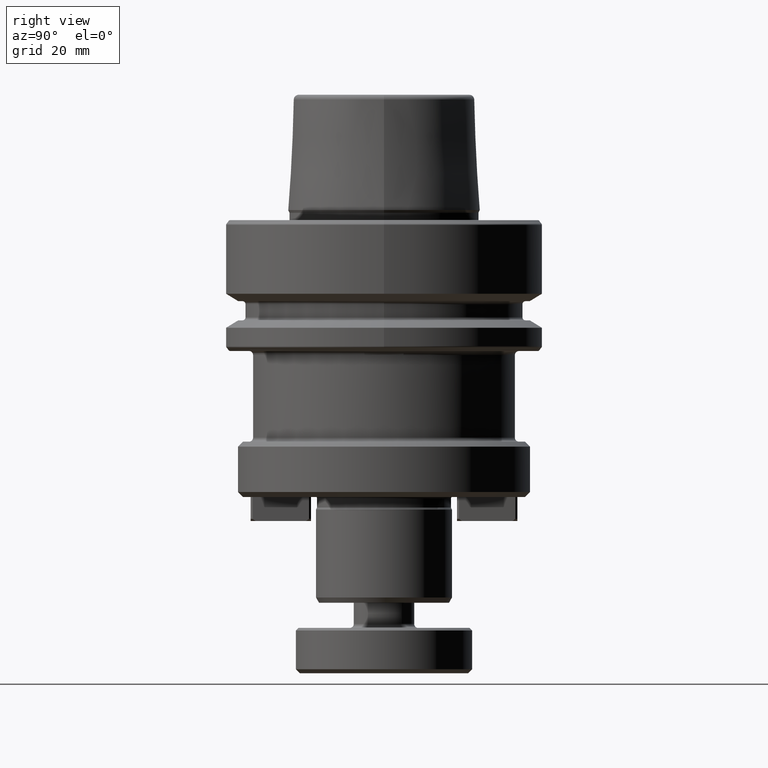
[diagram: clean part render]
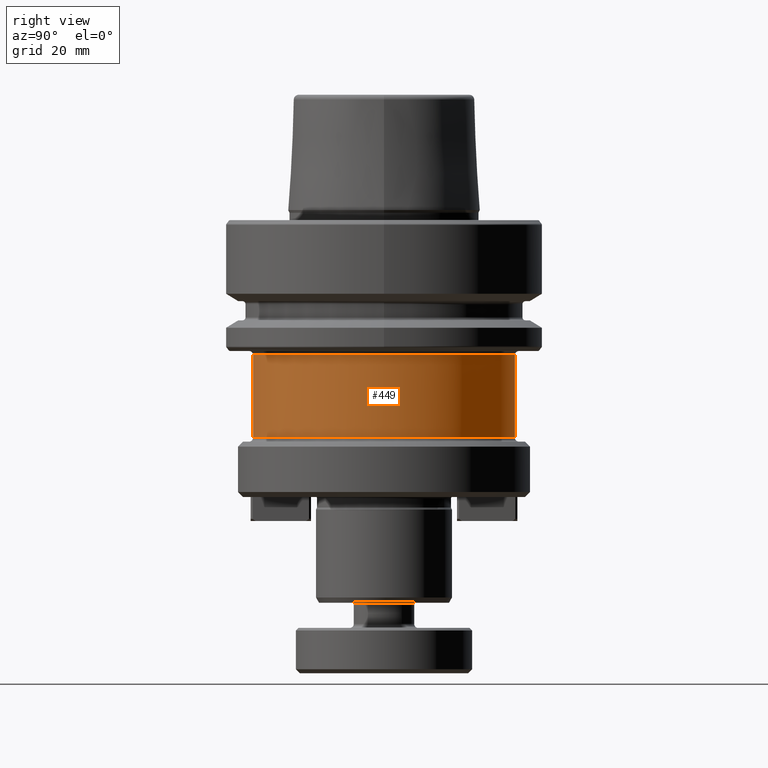
[diagram: same view with one face highlighted and labeled with its STEP entity id]
A machine part, right view. The second image highlights one B-rep face of the part: STEP entity #449.
In plain terms, the highlighted cylindrical surface (partial cylindrical patch) has radius 26 mm, axis along (-0, 0, -1).
Its self-contained STEP definition (entity closure, byte-faithful):
#84 = AXIS2_PLACEMENT_3D ( 'NONE', #835, #2585, #1085 ) ;
#116 = CIRCLE ( 'NONE', #410, 26.00000000000000000 ) ;
#220 = EDGE_CURVE ( 'NONE', #3211, #2080, #2246, .T. ) ;
#224 = CARTESIAN_POINT ( 'NONE',  ( 1.902633352528937400, 30.06509994229509200, 11.01820766701714600 ) ) ;
#250 = CARTESIAN_POINT ( 'NONE',  ( 27.78180785239622700, 1.478709936920700600, 27.43595549328966100 ) ) ;
#362 = EDGE_CURVE ( 'NONE', #2282, #3211, #2499, .T. ) ;
#370 = CYLINDRICAL_SURFACE ( 'NONE', #1578, 26.00000000000000000 ) ;
#410 = AXIS2_PLACEMENT_3D ( 'NONE', #899, #2642, #1147 ) ;
#443 = CARTESIAN_POINT ( 'NONE',  ( 1.902633352528937400, 30.06509994229509200, -21.78179233298284200 ) ) ;
#449 = ADVANCED_FACE ( 'NONE', ( #2337 ), #370, .T. ) ;
#501 = CARTESIAN_POINT ( 'NONE',  ( 27.61158857640953500, 0.1857158034784065500, 27.41820766701715000 ) ) ;
#605 = CARTESIAN_POINT ( 'NONE',  ( 1.902633352528937400, 4.065099942295091800, 11.01820766701714600 ) ) ;
#624 = EDGE_CURVE ( 'NONE', #1523, #1565, #1804, .T. ) ;
#689 = DIRECTION ( 'NONE',  ( -0.0000000000000000000, 4.898587196589402800E-018, -1.000000000000000000 ) ) ;
#755 = CARTESIAN_POINT ( 'NONE',  ( 1.902633352528940700, -21.93490005770490800, -21.78179233298284200 ) ) ;
#833 = DIRECTION ( 'NONE',  ( 0.0000000000000000000, 1.000000000000000000, 0.0000000000000000000 ) ) ;
#835 = CARTESIAN_POINT ( 'NONE',  ( 1.902633352528937400, 4.065099942295091800, 27.41820766701715000 ) ) ;
#899 = CARTESIAN_POINT ( 'NONE',  ( 1.902633352528937400, 4.065099942295091800, 27.41820766701715000 ) ) ;
#919 = ORIENTED_EDGE ( 'NONE', *, *, #2402, .T. ) ;
#1038 = ORIENTED_EDGE ( 'NONE', *, *, #2463, .F. ) ;
#1085 = DIRECTION ( 'NONE',  ( 1.000000000000000000, 0.0000000000000000000, 0.0000000000000000000 ) ) ;
#1099 = ORIENTED_EDGE ( 'NONE', *, *, #362, .T. ) ;
#1135 = ORIENTED_EDGE ( 'NONE', *, *, #220, .T. ) ;
#1147 = DIRECTION ( 'NONE',  ( 1.000000000000000000, 0.0000000000000000000, 0.0000000000000000000 ) ) ;
#1204 = VECTOR ( 'NONE', #2740, 1000.000000000000000 ) ;
#1400 = CARTESIAN_POINT ( 'NONE',  ( 27.70885714735747700, 7.299878327799025800, 27.41820766701715000 ) ) ;
#1467 = CARTESIAN_POINT ( 'NONE',  ( 27.90259611465304000, 4.713344029840193600, 27.47657229135661100 ) ) ;
#1523 = VERTEX_POINT ( 'NONE', #2437 ) ;
#1527 = VERTEX_POINT ( 'NONE', #224 ) ;
#1565 = VERTEX_POINT ( 'NONE', #2982 ) ;
#1578 = AXIS2_PLACEMENT_3D ( 'NONE', #1604, #3108, #2966 ) ;
#1595 = ORIENTED_EDGE ( 'NONE', *, *, #624, .T. ) ;
#1604 = CARTESIAN_POINT ( 'NONE',  ( 1.902633352528937400, 4.065099942295091800, -21.78179233298284200 ) ) ;
#1738 = CARTESIAN_POINT ( 'NONE',  ( 27.87860977266618100, 2.772917650605498000, 27.46524816295649500 ) ) ;
#1804 = LINE ( 'NONE', #755, #1204 ) ;
#1993 = CARTESIAN_POINT ( 'NONE',  ( 27.70886937945971000, 0.8304026198046183800, 27.41820766701715000 ) ) ;
#2080 = VERTEX_POINT ( 'NONE', #2490 ) ;
#2187 = AXIS2_PLACEMENT_3D ( 'NONE', #605, #2327, #833 ) ;
#2246 = B_SPLINE_CURVE_WITH_KNOTS ( 'NONE', 3,
 ( #2780, #1400, #2393, #2979, #1467, #3240, #1738, #250, #1993, #501 ),
 .UNSPECIFIED., .F., .F.,
 ( 4, 2, 2, 2, 4 ),
 ( 0.0000000000000000000, 0.001955604580185029000, 0.003911209160370058100, 0.005866813740555087100, 0.007822418320740116100 ),
 .UNSPECIFIED. ) ;
#2282 = VERTEX_POINT ( 'NONE', #2636 ) ;
#2327 = DIRECTION ( 'NONE',  ( -0.0000000000000000000, 4.898587196589402800E-018, -1.000000000000000000 ) ) ;
#2337 = FACE_OUTER_BOUND ( 'NONE', #3047, .T. ) ;
#2393 = CARTESIAN_POINT ( 'NONE',  ( 27.78166898557040200, 6.652701642516379200, 27.43592394701803300 ) ) ;
#2402 = EDGE_CURVE ( 'NONE', #2080, #1523, #116, .T. ) ;
#2437 = CARTESIAN_POINT ( 'NONE',  ( 1.902633352528940700, -21.93490005770490800, 27.41820766701715000 ) ) ;
#2448 = CARTESIAN_POINT ( 'NONE',  ( 27.61158857640953500, 7.944484081111777000, 27.41820766701715000 ) ) ;
#2463 = EDGE_CURVE ( 'NONE', #2282, #1527, #2525, .T. ) ;
#2490 = CARTESIAN_POINT ( 'NONE',  ( 27.61158857640953500, 0.1857158034784065500, 27.41820766701715000 ) ) ;
#2499 = CIRCLE ( 'NONE', #84, 26.00000000000000000 ) ;
#2525 = LINE ( 'NONE', #443, #3201 ) ;
#2585 = DIRECTION ( 'NONE',  ( 0.0000000000000000000, 0.0000000000000000000, -1.000000000000000000 ) ) ;
#2636 = CARTESIAN_POINT ( 'NONE',  ( 1.902633352528937400, 30.06509994229509200, 27.41820766701715000 ) ) ;
#2642 = DIRECTION ( 'NONE',  ( 0.0000000000000000000, 0.0000000000000000000, -1.000000000000000000 ) ) ;
#2651 = ORIENTED_EDGE ( 'NONE', *, *, #2794, .F. ) ;
#2676 = CIRCLE ( 'NONE', #2187, 26.00000000000000000 ) ;
#2740 = DIRECTION ( 'NONE',  ( -0.0000000000000000000, 4.898587196589402800E-018, -1.000000000000000000 ) ) ;
#2780 = CARTESIAN_POINT ( 'NONE',  ( 27.61158857640953500, 7.944484081111777000, 27.41820766701715000 ) ) ;
#2794 = EDGE_CURVE ( 'NONE', #1527, #1565, #2676, .T. ) ;
#2966 = DIRECTION ( 'NONE',  ( 0.0000000000000000000, 1.000000000000000000, 0.0000000000000000000 ) ) ;
#2979 = CARTESIAN_POINT ( 'NONE',  ( 27.87846110130649500, 5.359912909891375100, 27.46519273003331200 ) ) ;
#2982 = CARTESIAN_POINT ( 'NONE',  ( 1.902633352528940700, -21.93490005770490800, 11.01820766701714600 ) ) ;
#3047 = EDGE_LOOP ( 'NONE', ( #919, #1595, #2651, #1038, #1099, #1135 ) ) ;
#3108 = DIRECTION ( 'NONE',  ( -0.0000000000000000000, 4.898587196589402800E-018, -1.000000000000000000 ) ) ;
#3201 = VECTOR ( 'NONE', #689, 1000.000000000000000 ) ;
#3211 = VERTEX_POINT ( 'NONE', #2448 ) ;
#3240 = CARTESIAN_POINT ( 'NONE',  ( 27.90267050441079600, 3.419846403257653700, 27.47660330940189900 ) ) ;